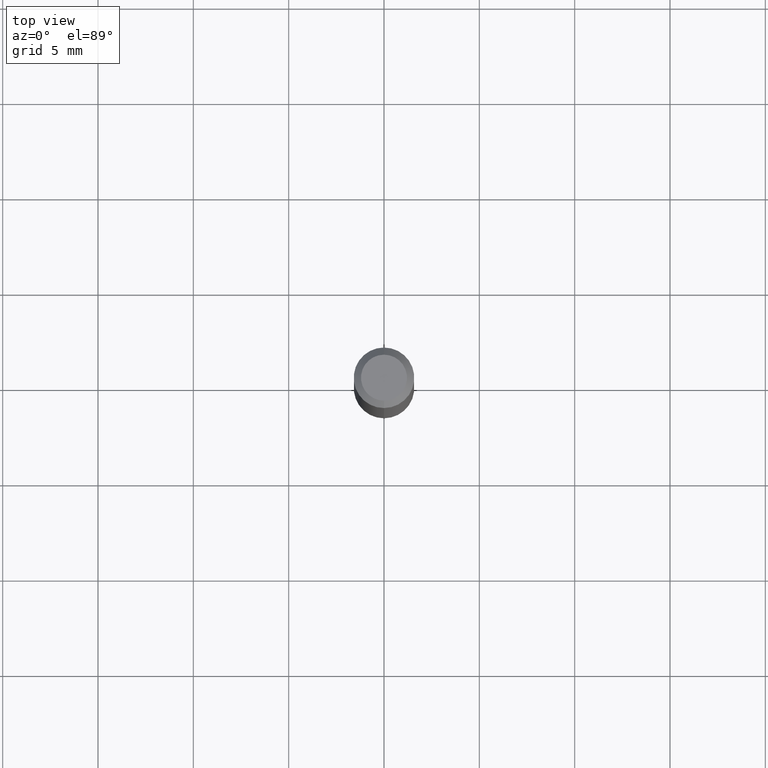
[diagram: clean part render]
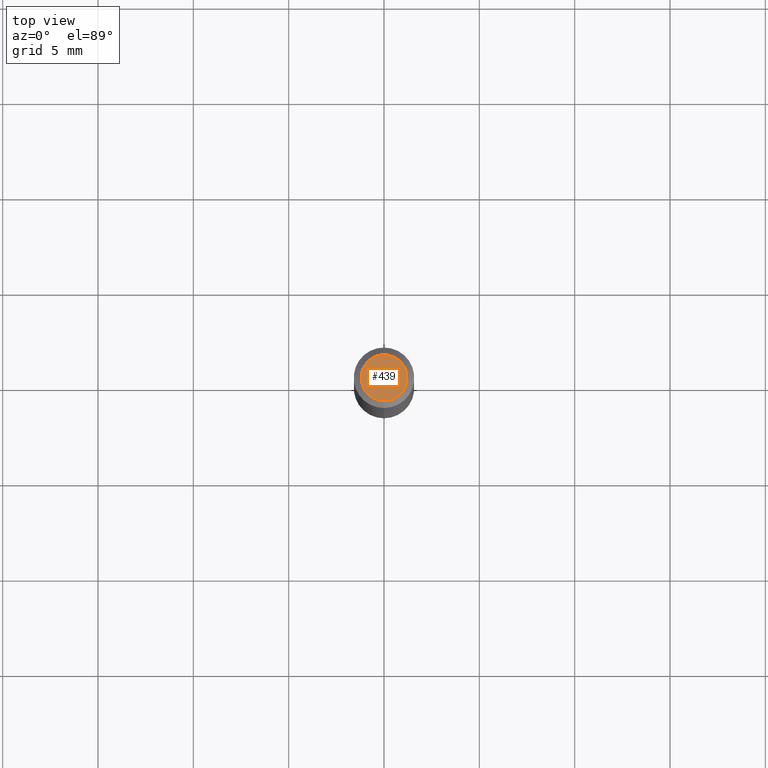
[diagram: same view with one face highlighted and labeled with its STEP entity id]
A machine part, top view. The second image highlights one B-rep face of the part: STEP entity #439.
In plain terms, the highlighted planar face has unit normal (0, -0, -1).
Its self-contained STEP definition (entity closure, byte-faithful):
#9 = CARTESIAN_POINT ( 'NONE',  ( 3.840629472727447874E-16, 0.04749999999999999362, -2.313455976474456035E-16 ) ) ;
#32 = ORIENTED_EDGE ( 'NONE', *, *, #488, .T. ) ;
#54 = CIRCLE ( 'NONE', #463, 0.04749999999999999362 ) ;
#82 = DIRECTION ( 'NONE',  ( 2.445472125040297203E-29, -3.491476586053657757E-15, -1.000000000000000000 ) ) ;
#153 = CARTESIAN_POINT ( 'NONE',  ( 1.601795486424251367E-45, -2.286933218020036145E-31, -6.550045980989689253E-17 ) ) ;
#184 = ORIENTED_EDGE ( 'NONE', *, *, #351, .T. ) ;
#195 = PLANE ( 'NONE',  #428 ) ;
#226 = VERTEX_POINT ( 'NONE', #9 ) ;
#231 = DIRECTION ( 'NONE',  ( 6.982962677686265922E-15, 1.000000000000000000, -3.491476586053657757E-15 ) ) ;
#234 = EDGE_LOOP ( 'NONE', ( #32, #184 ) ) ;
#288 = DIRECTION ( 'NONE',  ( -6.982962677686266711E-15, -1.000000000000000000, 3.491476586053657363E-15 ) ) ;
#298 = VERTEX_POINT ( 'NONE', #339 ) ;
#306 = DIRECTION ( 'NONE',  ( -2.445472125040297483E-29, 3.491476586053657757E-15, 1.000000000000000000 ) ) ;
#308 = DIRECTION ( 'NONE',  ( -6.982962677686266711E-15, -1.000000000000000000, 3.491476586053657363E-15 ) ) ;
#311 = FACE_OUTER_BOUND ( 'NONE', #234, .T. ) ;
#339 = CARTESIAN_POINT ( 'NONE',  ( -3.773273898774340269E-16, -0.04749999999999999362, 1.003446780276518307E-16 ) ) ;
#343 = CARTESIAN_POINT ( 'NONE',  ( 3.316907271900976096E-16, 0.04749999999999999362, -1.985953677424971572E-16 ) ) ;
#351 = EDGE_CURVE ( 'NONE', #298, #226, #54, .T. ) ;
#364 = CIRCLE ( 'NONE', #389, 0.04749999999999999362 ) ;
#389 = AXIS2_PLACEMENT_3D ( 'NONE', #153, #306, #308 ) ;
#410 = CARTESIAN_POINT ( 'NONE',  ( 1.601795486424251367E-45, -2.286933218020036145E-31, -6.550045980989689253E-17 ) ) ;
#428 = AXIS2_PLACEMENT_3D ( 'NONE', #343, #82, #231 ) ;
#439 = ADVANCED_FACE ( 'NONE', ( #311 ), #195, .F. ) ;
#455 = DIRECTION ( 'NONE',  ( -2.445472125040297483E-29, 3.491476586053657757E-15, 1.000000000000000000 ) ) ;
#463 = AXIS2_PLACEMENT_3D ( 'NONE', #410, #455, #288 ) ;
#488 = EDGE_CURVE ( 'NONE', #226, #298, #364, .T. ) ;